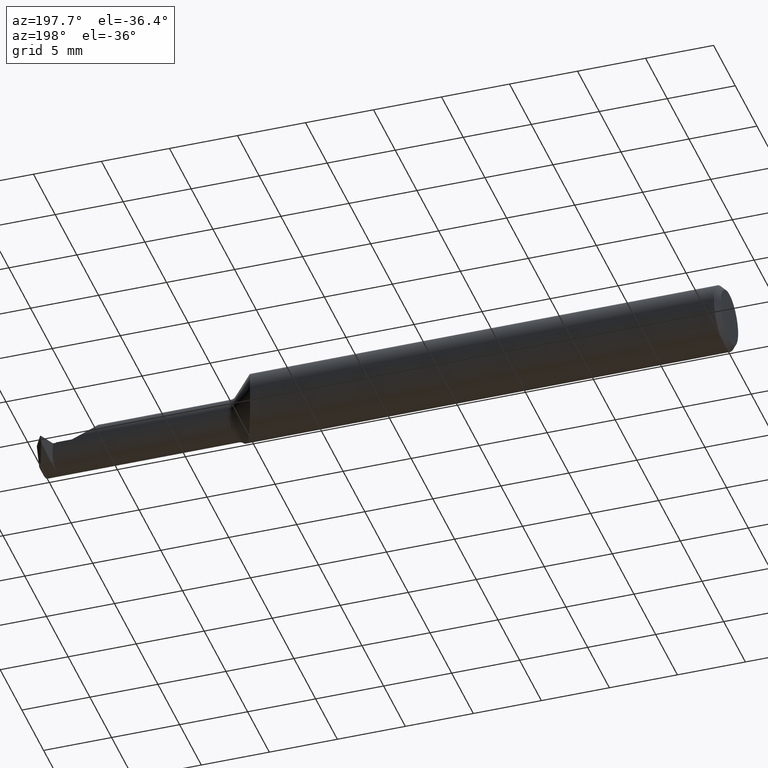
[diagram: clean part render]
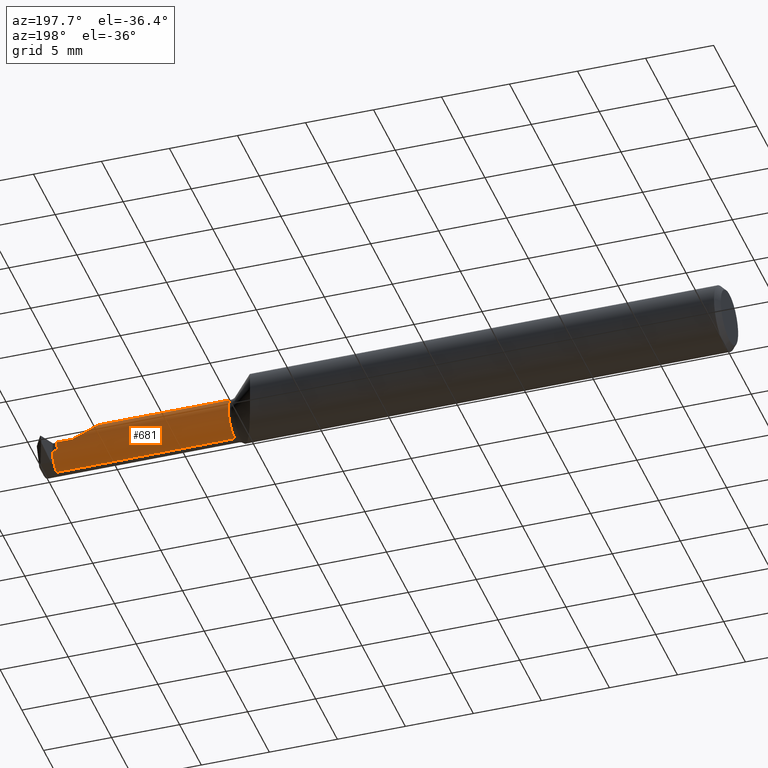
[diagram: same view with one face highlighted and labeled with its STEP entity id]
A machine part, auxiliary view. The second image highlights one B-rep face of the part: STEP entity #681.
In plain terms, the highlighted cylindrical surface (edge-blend (fillet) strip) has radius 1.524 mm, axis along (-1, -0, -0).
Its self-contained STEP definition (entity closure, byte-faithful):
#10 = CARTESIAN_POINT ( 'NONE',  ( 1.850399999999999379, -0.04360000000000000681, 0.05999999999999999778 ) ) ;
#24 = VECTOR ( 'NONE', #722, 39.37007874015748143 ) ;
#32 = CARTESIAN_POINT ( 'NONE',  ( 1.851906874573397754, -0.03023757964185340430, 0.05849312542660196207 ) ) ;
#39 = LINE ( 'NONE', #55, #290 ) ;
#41 = CARTESIAN_POINT ( 'NONE',  ( 1.829251100658288109, -0.007957894166484187626, 0.04836674030581524647 ) ) ;
#42 = B_SPLINE_CURVE_WITH_KNOTS ( 'NONE', 3,
 ( #223, #297, #622, #70 ),
 .UNSPECIFIED., .F., .F.,
 ( 4, 4 ),
 ( 0.000000000000000000, 1.000000000000000000 ),
 .UNSPECIFIED. ) ;
#55 = CARTESIAN_POINT ( 'NONE',  ( 1.434999999999999831, 0.009856536218723205289, -0.02724699498103109671 ) ) ;
#56 = ORIENTED_EDGE ( 'NONE', *, *, #191, .F. ) ;
#70 = CARTESIAN_POINT ( 'NONE',  ( 1.831581829498387437, 0.004156990047637443633, 0.03632175521075289154 ) ) ;
#73 = FACE_OUTER_BOUND ( 'NONE', #952, .T. ) ;
#78 = VECTOR ( 'NONE', #96, 39.37007874015748143 ) ;
#94 = VERTEX_POINT ( 'NONE', #281 ) ;
#96 = DIRECTION ( 'NONE',  ( -1.000000000000000000, -0.000000000000000000, -0.000000000000000000 ) ) ;
#105 = CARTESIAN_POINT ( 'NONE',  ( 1.445355339059327227, -0.04360000000000000681, 0.05999999999999999778 ) ) ;
#118 = EDGE_CURVE ( 'NONE', #255, #1057, #39, .T. ) ;
#136 = CARTESIAN_POINT ( 'NONE',  ( 1.850904409533194350, -0.03462580511005178274, 0.05949559046680520658 ) ) ;
#139 = EDGE_CURVE ( 'NONE', #918, #255, #814, .T. ) ;
#148 = EDGE_CURVE ( 'NONE', #407, #927, #293, .T. ) ;
#151 = ORIENTED_EDGE ( 'NONE', *, *, #139, .F. ) ;
#152 = CARTESIAN_POINT ( 'NONE',  ( 1.445355339059327227, -0.04360000000000000681, 0.000000000000000000 ) ) ;
#168 = ORIENTED_EDGE ( 'NONE', *, *, #632, .T. ) ;
#191 = EDGE_CURVE ( 'NONE', #407, #824, #796, .T. ) ;
#200 = ORIENTED_EDGE ( 'NONE', *, *, #929, .F. ) ;
#212 = CARTESIAN_POINT ( 'NONE',  ( 1.956257227912774788, 0.009856536218723207024, -0.02724699498103111059 ) ) ;
#223 = CARTESIAN_POINT ( 'NONE',  ( 1.828637745190898611, -0.002732563862903389720, 0.04393008836299248238 ) ) ;
#255 = VERTEX_POINT ( 'NONE', #1062 ) ;
#278 = CARTESIAN_POINT ( 'NONE',  ( 1.828637745190898611, -0.002732563862903389720, 0.04393008836299248238 ) ) ;
#281 = CARTESIAN_POINT ( 'NONE',  ( 1.445355339059327227, -0.04359999999999999987, -0.05999999999999999778 ) ) ;
#290 = VECTOR ( 'NONE', #616, 39.37007874015748143 ) ;
#293 =( BOUNDED_CURVE ( )  B_SPLINE_CURVE ( 3, ( #686, #1027, #136, #352 ),
 .UNSPECIFIED., .F., .F. ) 
 B_SPLINE_CURVE_WITH_KNOTS ( ( 4, 4 ),
 ( 0.000000000000000000, 0.2245903366161136339 ),
 .UNSPECIFIED. ) 
 CURVE ( )  GEOMETRIC_REPRESENTATION_ITEM ( )  RATIONAL_B_SPLINE_CURVE ( ( 1.000000000000000000, 0.9958010136815396152, 0.9958010136815396152, 1.000000000000000000 ) ) 
 REPRESENTATION_ITEM ( '' )  );
#297 = CARTESIAN_POINT ( 'NONE',  ( 1.829619106626728220, -0.0002244724197753956247, 0.04159685228955042890 ) ) ;
#299 = VERTEX_POINT ( 'NONE', #974 ) ;
#300 = CARTESIAN_POINT ( 'NONE',  ( 1.832015459715254257, -0.01315755423167340975, 0.05179728536999027300 ) ) ;
#309 = DIRECTION ( 'NONE',  ( 0.000000000000000000, 0.000000000000000000, 1.000000000000000000 ) ) ;
#314 = EDGE_CURVE ( 'NONE', #912, #299, #42, .T. ) ;
#334 = LINE ( 'NONE', #834, #78 ) ;
#345 = CARTESIAN_POINT ( 'NONE',  ( 1.833142237990343482, 0.005937891782291520454, 0.03398016940568625299 ) ) ;
#352 = CARTESIAN_POINT ( 'NONE',  ( 1.851906874573397754, -0.03023757964185340430, 0.05849312542660196207 ) ) ;
#356 = CARTESIAN_POINT ( 'NONE',  ( 1.884521818493612111, 0.01657004378869488675, 0.001389317787596808240 ) ) ;
#363 = CARTESIAN_POINT ( 'NONE',  ( 1.958797035050163116, -0.0006669446669314012081, -0.04789326579007528728 ) ) ;
#389 = CYLINDRICAL_SURFACE ( 'NONE', #530, 0.05999999999999999778 ) ;
#394 = EDGE_CURVE ( 'NONE', #434, #718, #334, .T. ) ;
#407 = VERTEX_POINT ( 'NONE', #10 ) ;
#413 = CARTESIAN_POINT ( 'NONE',  ( 1.944321999096872311, 0.01630738327627595519, -0.003332480906080033129 ) ) ;
#416 = ORIENTED_EDGE ( 'NONE', *, *, #394, .F. ) ;
#421 = VECTOR ( 'NONE', #942, 39.37007874015748143 ) ;
#434 = VERTEX_POINT ( 'NONE', #413 ) ;
#436 = CARTESIAN_POINT ( 'NONE',  ( 1.828637745190898611, -0.002732563862903389720, 0.04393008836299248238 ) ) ;
#440 = ORIENTED_EDGE ( 'NONE', *, *, #944, .F. ) ;
#446 = CARTESIAN_POINT ( 'NONE',  ( 1.961119976209501070, -0.04360000000000001374, -0.06000000000000001166 ) ) ;
#449 = CARTESIAN_POINT ( 'NONE',  ( 1.434999999999999831, -0.04359999999999999987, -0.05999999999999999778 ) ) ;
#466 = CARTESIAN_POINT ( 'NONE',  ( 1.840702605406867587, -0.02263010674176905643, 0.05644939994009514489 ) ) ;
#476 = DIRECTION ( 'NONE',  ( -1.000000000000000000, -0.000000000000000000, -0.000000000000000000 ) ) ;
#489 = B_SPLINE_CURVE_WITH_KNOTS ( 'NONE', 3,
 ( #436, #768, #41, #300, #883, #466, #701, #548 ),
 .UNSPECIFIED., .F., .F.,
 ( 4, 2, 2, 4 ),
 ( 0.003265010361189594340, 0.003523303455756640959, 0.003781596550323687578, 0.004298182739457780815 ),
 .UNSPECIFIED. ) ;
#515 = CARTESIAN_POINT ( 'NONE',  ( 1.872404127851039490, 0.01637454520963418925, 0.006737563156796485750 ) ) ;
#530 = AXIS2_PLACEMENT_3D ( 'NONE', #962, #476, #715 ) ;
#548 = CARTESIAN_POINT ( 'NONE',  ( 1.851906874573397754, -0.03023757964185340430, 0.05849312542660196207 ) ) ;
#562 = CIRCLE ( 'NONE', #916, 0.05999999999999999778 ) ;
#565 = CARTESIAN_POINT ( 'NONE',  ( 1.434999999999999831, -0.04360000000000000681, 0.05999999999999999778 ) ) ;
#570 = ORIENTED_EDGE ( 'NONE', *, *, #841, .T. ) ;
#599 = ORIENTED_EDGE ( 'NONE', *, *, #314, .T. ) ;
#616 = DIRECTION ( 'NONE',  ( -1.000000000000000000, -0.000000000000000000, -0.000000000000000000 ) ) ;
#620 = CARTESIAN_POINT ( 'NONE',  ( 1.939456536218723048, 0.009856536218723252127, -0.02724699498103093712 ) ) ;
#622 = CARTESIAN_POINT ( 'NONE',  ( 1.830600468062557828, 0.002083279594548063940, 0.03904833515974594216 ) ) ;
#632 = EDGE_CURVE ( 'NONE', #94, #824, #562, .T. ) ;
#658 = ORIENTED_EDGE ( 'NONE', *, *, #118, .F. ) ;
#667 = CARTESIAN_POINT ( 'NONE',  ( 1.896798777021039273, 0.01630738327627578171, -0.003332480906079971113 ) ) ;
#671 = CARTESIAN_POINT ( 'NONE',  ( 1.831581829498387437, 0.004156990047637443633, 0.03632175521075289154 ) ) ;
#676 = CARTESIAN_POINT ( 'NONE',  ( 1.961119976209501070, -0.04360000000000001374, -0.06000000000000001166 ) ) ;
#681 = ADVANCED_FACE ( 'NONE', ( #73 ), #389, .T. ) ;
#686 = CARTESIAN_POINT ( 'NONE',  ( 1.850399999999999379, -0.04360000000000000681, 0.05999999999999999778 ) ) ;
#701 = CARTESIAN_POINT ( 'NONE',  ( 1.846216599758046195, -0.02666001586205693150, 0.05767585141815962518 ) ) ;
#703 = EDGE_CURVE ( 'NONE', #1057, #434, #887, .T. ) ;
#704 = CARTESIAN_POINT ( 'NONE',  ( 1.942620373637391484, 0.01584213080176300609, -0.01169623724749642261 ) ) ;
#715 = DIRECTION ( 'NONE',  ( 0.000000000000000000, 0.000000000000000000, 1.000000000000000000 ) ) ;
#718 = VERTEX_POINT ( 'NONE', #749 ) ;
#722 = DIRECTION ( 'NONE',  ( -1.000000000000000000, -0.000000000000000000, -0.000000000000000000 ) ) ;
#726 = DIRECTION ( 'NONE',  ( 1.000000000000000000, 0.000000000000000000, 0.000000000000000000 ) ) ;
#749 = CARTESIAN_POINT ( 'NONE',  ( 1.896798777021039273, 0.01630738327627578171, -0.003332480906079971113 ) ) ;
#768 = CARTESIAN_POINT ( 'NONE',  ( 1.828496610294325198, -0.005243808589019923090, 0.04626625788355395730 ) ) ;
#796 = LINE ( 'NONE', #565, #24 ) ;
#810 = CARTESIAN_POINT ( 'NONE',  ( 1.944321999096872311, 0.01630738327627595519, -0.003332480906080033129 ) ) ;
#814 =( BOUNDED_CURVE ( )  B_SPLINE_CURVE ( 3, ( #446, #1039, #363, #212 ),
 .UNSPECIFIED., .F., .F. ) 
 B_SPLINE_CURVE_WITH_KNOTS ( ( 4, 4 ),
 ( 3.342305517569140960, 4.441721434652711409 ),
 .UNSPECIFIED. ) 
 CURVE ( )  GEOMETRIC_REPRESENTATION_ITEM ( )  RATIONAL_B_SPLINE_CURVE ( ( 1.000000000000000000, 0.9017847546951444082, 0.9017847546951444082, 1.000000000000000000 ) ) 
 REPRESENTATION_ITEM ( '' )  );
#824 = VERTEX_POINT ( 'NONE', #105 ) ;
#834 = CARTESIAN_POINT ( 'NONE',  ( 1.434999999999999831, 0.01630738327627581641, -0.003332480906080046140 ) ) ;
#840 = ORIENTED_EDGE ( 'NONE', *, *, #148, .T. ) ;
#841 = EDGE_CURVE ( 'NONE', #918, #94, #1018, .T. ) ;
#843 = CARTESIAN_POINT ( 'NONE',  ( 1.835158345573425498, 0.007382581723426181845, 0.03172974878280866717 ) ) ;
#850 = CARTESIAN_POINT ( 'NONE',  ( 1.842042451051777441, 0.01076529854796516236, 0.02547025266505694580 ) ) ;
#861 = CARTESIAN_POINT ( 'NONE',  ( 1.855293964964911391, 0.01424548388428789614, 0.01626300100815214478 ) ) ;
#866 = CARTESIAN_POINT ( 'NONE',  ( 1.939456536218723048, 0.009856536218723252127, -0.02724699498103093712 ) ) ;
#873 = B_SPLINE_CURVE_WITH_KNOTS ( 'NONE', 3,
 ( #667, #356, #515, #861, #1008, #850, #1013, #843, #345, #671 ),
 .UNSPECIFIED., .F., .F.,
 ( 4, 2, 2, 2, 4 ),
 ( 0.0009894441996767370812, 0.001991381201394798808, 0.002492349702253820673, 0.002742833952683323799, 0.002993318203112826058 ),
 .UNSPECIFIED. ) ;
#883 = CARTESIAN_POINT ( 'NONE',  ( 1.834005219439634349, -0.01567704656444265238, 0.05316837843728449559 ) ) ;
#887 =( BOUNDED_CURVE ( )  B_SPLINE_CURVE ( 3, ( #620, #890, #704, #810 ),
 .UNSPECIFIED., .F., .F. ) 
 B_SPLINE_CURVE_WITH_KNOTS ( ( 4, 4 ),
 ( 1.099415917083573335, 1.515226382604686783 ),
 .UNSPECIFIED. ) 
 CURVE ( )  GEOMETRIC_REPRESENTATION_ITEM ( )  RATIONAL_B_SPLINE_CURVE ( ( 1.000000000000000000, 0.9856436290335572892, 0.9856436290335572892, 1.000000000000000000 ) ) 
 REPRESENTATION_ITEM ( '' )  );
#890 = CARTESIAN_POINT ( 'NONE',  ( 1.940974930079892857, 0.01366052855813472931, -0.01978385071836776324 ) ) ;
#903 = ORIENTED_EDGE ( 'NONE', *, *, #703, .F. ) ;
#912 = VERTEX_POINT ( 'NONE', #278 ) ;
#916 = AXIS2_PLACEMENT_3D ( 'NONE', #152, #726, #309 ) ;
#918 = VERTEX_POINT ( 'NONE', #676 ) ;
#927 = VERTEX_POINT ( 'NONE', #32 ) ;
#929 = EDGE_CURVE ( 'NONE', #718, #299, #873, .T. ) ;
#942 = DIRECTION ( 'NONE',  ( -1.000000000000000000, -0.000000000000000000, -0.000000000000000000 ) ) ;
#944 = EDGE_CURVE ( 'NONE', #912, #927, #489, .T. ) ;
#952 = EDGE_LOOP ( 'NONE', ( #151, #570, #168, #56, #840, #440, #599, #200, #416, #903, #658 ) ) ;
#962 = CARTESIAN_POINT ( 'NONE',  ( 1.434999999999999831, -0.04360000000000000681, 0.000000000000000000 ) ) ;
#974 = CARTESIAN_POINT ( 'NONE',  ( 1.831581829498387437, 0.004156990047637443633, 0.03632175521075289154 ) ) ;
#1008 = CARTESIAN_POINT ( 'NONE',  ( 1.849695287952170419, 0.01321345061180660002, 0.01973599902981121659 ) ) ;
#1013 = CARTESIAN_POINT ( 'NONE',  ( 1.839616560198140238, 0.009799446392420314844, 0.02746815832903633237 ) ) ;
#1018 = LINE ( 'NONE', #449, #421 ) ;
#1027 = CARTESIAN_POINT ( 'NONE',  ( 1.850399999999999379, -0.03909872696711534645, 0.06000000000000001860 ) ) ;
#1039 = CARTESIAN_POINT ( 'NONE',  ( 1.960594488478455855, -0.02042647743067265917, -0.06000000000000002554 ) ) ;
#1057 = VERTEX_POINT ( 'NONE', #866 ) ;
#1062 = CARTESIAN_POINT ( 'NONE',  ( 1.956257227912774788, 0.009856536218723207024, -0.02724699498103111059 ) ) ;